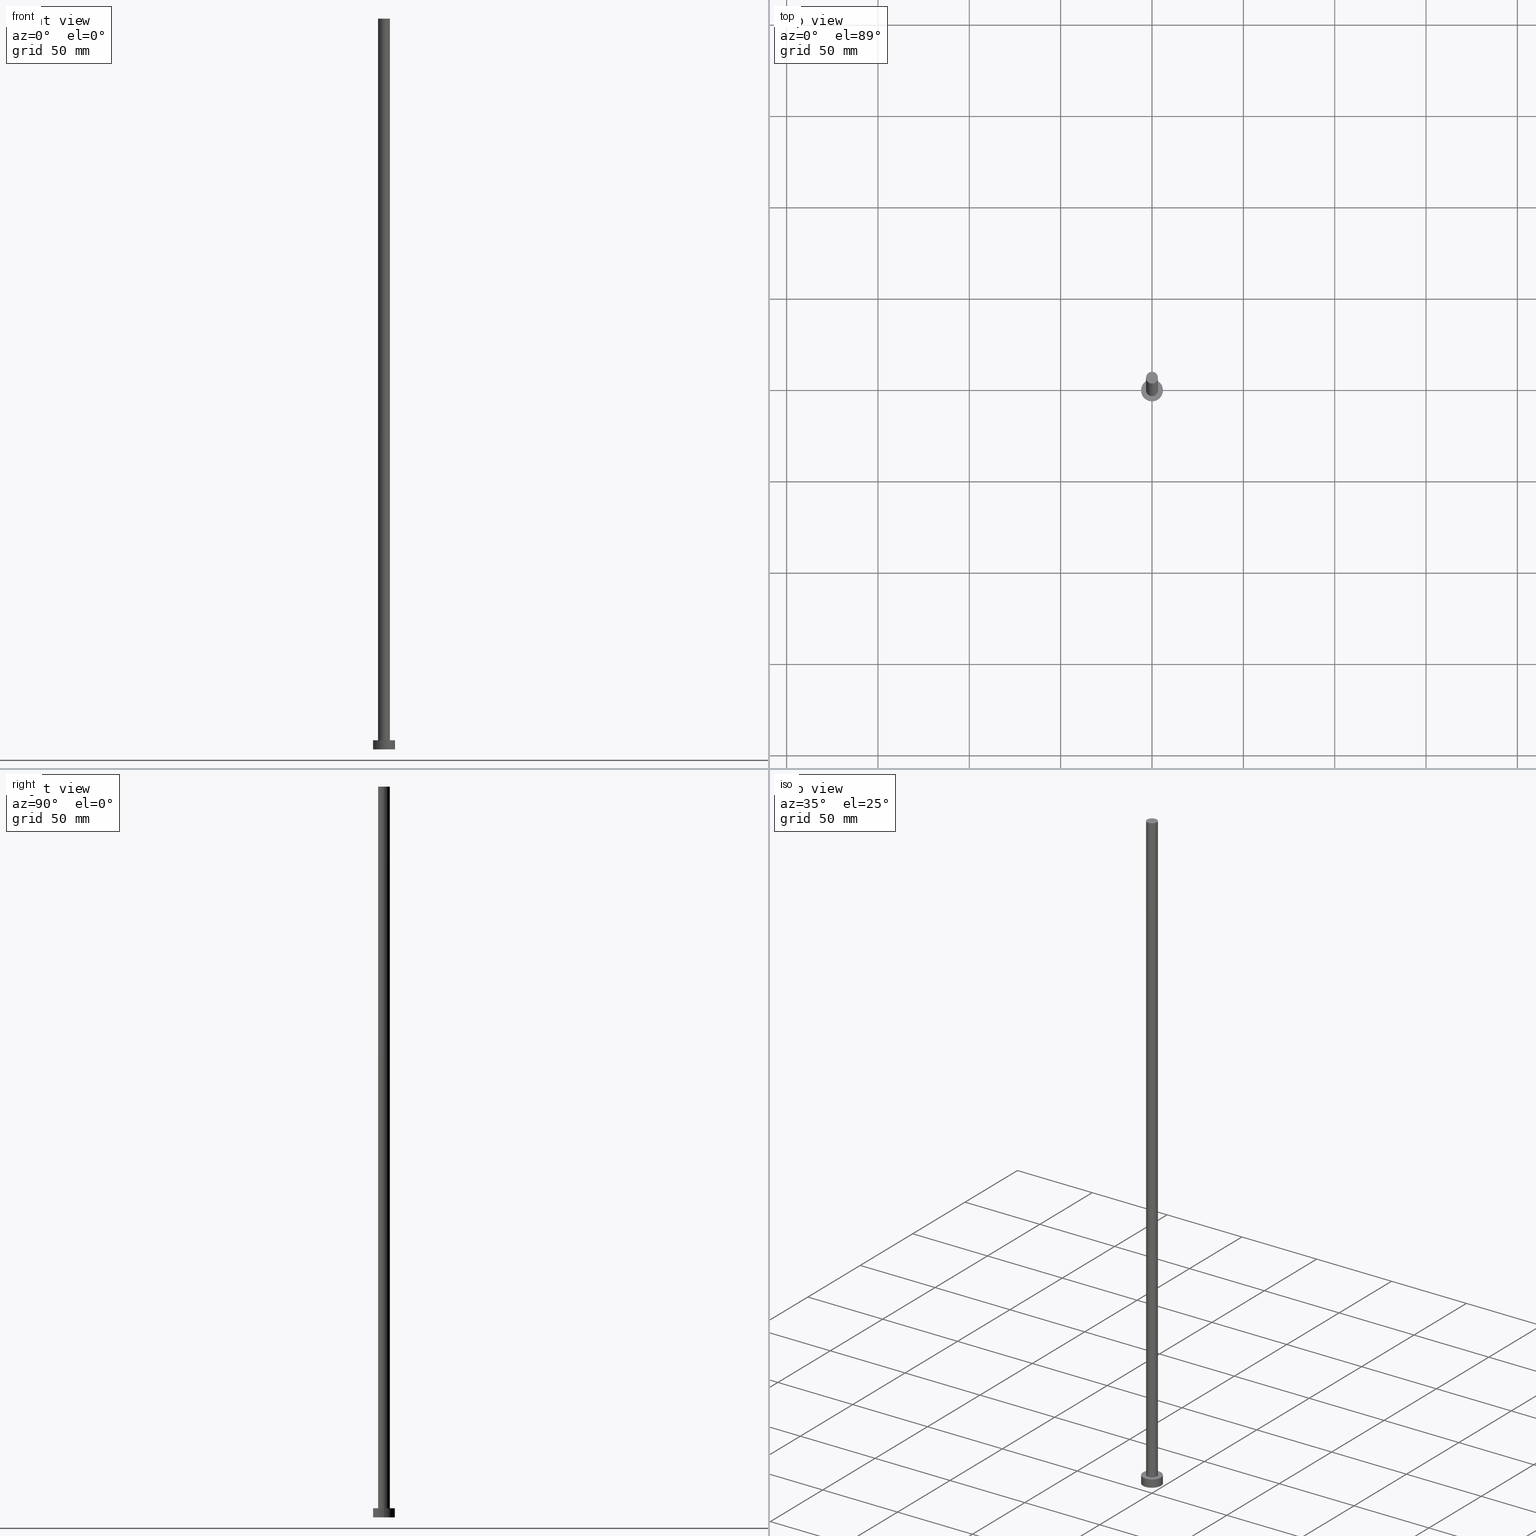
[diagram: canonical four-view strip — front | top / right | iso, engineering-drawing reading convention]
A machine part, canonical four-view strip (front | top / right | iso — engineering-drawing reading convention). The complete STEP part file that produces these views, byte-faithful:
ISO-10303-21;
HEADER;
FILE_DESCRIPTION (( 'STEP AP203' ),
    '1' );
FILE_NAME ('b815.STEP',
    '2023-02-12T11:30:34',
    ( '' ),
    ( '' ),
    'SwSTEP 2.0',
    'SolidWorks 2019',
    '' );
FILE_SCHEMA (( 'CONFIG_CONTROL_DESIGN' ));
ENDSEC;

DATA;
#1 = CARTESIAN_POINT ( 'NONE',  ( 0.000000000000000000, 0.000000000000000000, 400.0000000000000000 ) ) ;
#2 = CC_DESIGN_PERSON_AND_ORGANIZATION_ASSIGNMENT ( #74, #116, ( #146 ) ) ;
#3 = DIRECTION ( 'NONE',  ( 0.000000000000000000, 0.000000000000000000, 1.000000000000000000 ) ) ;
#4 = CARTESIAN_POINT ( 'NONE',  ( 0.000000000000000000, 0.000000000000000000, 0.000000000000000000 ) ) ;
#5 = CALENDAR_DATE ( 2023, 12, 2 ) ;
#6 = PERSON_AND_ORGANIZATION ( #99, #147 ) ;
#7 = CARTESIAN_POINT ( 'NONE',  ( 0.000000000000000000, 0.000000000000000000, 400.0000000000000000 ) ) ;
#8 = DIRECTION ( 'NONE',  ( -0.000000000000000000, -0.000000000000000000, -1.000000000000000000 ) ) ;
#9 = APPROVAL_ROLE ( '' ) ;
#10 = EDGE_CURVE ( 'NONE', #252, #248, #247, .T. ) ;
#11 = LINE ( 'NONE', #244, #232 ) ;
#12 = VERTEX_POINT ( 'NONE', #131 ) ;
#13 = ORIENTED_EDGE ( 'NONE', *, *, #17, .F. ) ;
#14 = ORIENTED_EDGE ( 'NONE', *, *, #17, .T. ) ;
#15 = AXIS2_PLACEMENT_3D ( 'NONE', #161, #101, #182 ) ;
#16 = ORIENTED_EDGE ( 'NONE', *, *, #76, .F. ) ;
#17 = EDGE_CURVE ( 'NONE', #34, #72, #171, .T. ) ;
#18 = PERSON_AND_ORGANIZATION_ROLE ( 'classification_officer' ) ;
#19 = CARTESIAN_POINT ( 'NONE',  ( 0.000000000000000000, 0.000000000000000000, 5.000000000000000000 ) ) ;
#20 = DATE_AND_TIME ( #23, #104 ) ;
#21 = APPROVAL ( #45, 'NEUR�EN�' ) ;
#22 = VECTOR ( 'NONE', #62, 1000.000000000000000 ) ;
#23 = CALENDAR_DATE ( 2023, 12, 2 ) ;
#24 = EDGE_CURVE ( 'NONE', #149, #234, #26, .T. ) ;
#25 = LINE ( 'NONE', #241, #39 ) ;
#26 = CIRCLE ( 'NONE', #58, 6.000000000000000888 ) ;
#27 = CYLINDRICAL_SURFACE ( 'NONE', #15, 3.250000000000000444 ) ;
#28 = APPROVAL_STATUS ( 'not_yet_approved' ) ;
#29 = ADVANCED_FACE ( 'NONE', ( #172, #189 ), #87, .T. ) ;
#30 = PRODUCT_DEFINITION_FORMATION_WITH_SPECIFIED_SOURCE ( 'LIBOVOLN�', '', #146, .NOT_KNOWN. ) ;
#31 = DIRECTION ( 'NONE',  ( 0.000000000000000000, 0.000000000000000000, 1.000000000000000000 ) ) ;
#32 = CC_DESIGN_PERSON_AND_ORGANIZATION_ASSIGNMENT ( #61, #102, ( #177 ) ) ;
#33 = CARTESIAN_POINT ( 'NONE',  ( 0.000000000000000000, 0.000000000000000000, 5.000000000000000000 ) ) ;
#34 = VERTEX_POINT ( 'NONE', #75 ) ;
#35 = CIRCLE ( 'NONE', #176, 3.250000000000000444 ) ;
#36 = DIRECTION ( 'NONE',  ( 0.000000000000000000, 0.000000000000000000, 1.000000000000000000 ) ) ;
#37 = CC_DESIGN_DATE_AND_TIME_ASSIGNMENT ( #238, #42, ( #160 ) ) ;
#38 = DIRECTION ( 'NONE',  ( 1.000000000000000000, 0.000000000000000000, -0.000000000000000000 ) ) ;
#39 = VECTOR ( 'NONE', #224, 1000.000000000000000 ) ;
#40 = CARTESIAN_POINT ( 'NONE',  ( 0.000000000000000000, 0.000000000000000000, 5.000000000000000000 ) ) ;
#41 = DIRECTION ( 'NONE',  ( -0.000000000000000000, -0.000000000000000000, -1.000000000000000000 ) ) ;
#42 = DATE_TIME_ROLE ( 'classification_date' ) ;
#43 = CARTESIAN_POINT ( 'NONE',  ( 0.000000000000000000, 0.000000000000000000, 0.000000000000000000 ) ) ;
#44 = DIRECTION ( 'NONE',  ( 1.000000000000000000, 0.000000000000000000, 0.000000000000000000 ) ) ;
#45 = APPROVAL_STATUS ( 'not_yet_approved' ) ;
#46 = CYLINDRICAL_SURFACE ( 'NONE', #183, 3.250000000000000444 ) ;
#47 = APPROVAL_ROLE ( '' ) ;
#48 = AXIS2_PLACEMENT_3D ( 'NONE', #153, #41, #217 ) ;
#49 = DATE_AND_TIME ( #242, #77 ) ;
#50 = DIRECTION ( 'NONE',  ( 1.000000000000000000, 0.000000000000000000, 0.000000000000000000 ) ) ;
#51 = FACE_OUTER_BOUND ( 'NONE', #70, .T. ) ;
#52 = CARTESIAN_POINT ( 'NONE',  ( -3.250000000000000444, 0.000000000000000000, 400.0000000000000000 ) ) ;
#53 = ORIENTED_EDGE ( 'NONE', *, *, #158, .T. ) ;
#54 = ORIENTED_EDGE ( 'NONE', *, *, #10, .T. ) ;
#55 = ORIENTED_EDGE ( 'NONE', *, *, #168, .T. ) ;
#56 = APPROVAL_PERSON_ORGANIZATION ( #201, #119, #9 ) ;
#57 = PLANE ( 'NONE',  #90 ) ;
#58 = AXIS2_PLACEMENT_3D ( 'NONE', #40, #208, #73 ) ;
#59 = DIRECTION ( 'NONE',  ( -1.000000000000000000, 0.000000000000000000, 0.000000000000000000 ) ) ;
#60 = APPROVAL_DATE_TIME ( #20, #21 ) ;
#61 = PERSON_AND_ORGANIZATION ( #99, #147 ) ;
#62 = DIRECTION ( 'NONE',  ( -0.000000000000000000, -0.000000000000000000, -1.000000000000000000 ) ) ;
#63 = CC_DESIGN_APPROVAL ( #21, ( #160 ) ) ;
#64 = PRODUCT_RELATED_PRODUCT_CATEGORY ( 'detail', '', ( #146 ) ) ;
#65 = CIRCLE ( 'NONE', #213, 6.000000000000000888 ) ;
#66 = APPROVAL_STATUS ( 'not_yet_approved' ) ;
#67 = CC_DESIGN_PERSON_AND_ORGANIZATION_ASSIGNMENT ( #135, #240, ( #30 ) ) ;
#68 = ADVANCED_FACE ( 'NONE', ( #84 ), #46, .T. ) ;
#69 = EDGE_LOOP ( 'NONE', ( #110, #55 ) ) ;
#70 = EDGE_LOOP ( 'NONE', ( #166, #215, #91, #151 ) ) ;
#71 = ADVANCED_FACE ( 'NONE', ( #134 ), #199, .T. ) ;
#72 = VERTEX_POINT ( 'NONE', #138 ) ;
#73 = DIRECTION ( 'NONE',  ( 1.000000000000000000, 0.000000000000000000, 0.000000000000000000 ) ) ;
#74 = PERSON_AND_ORGANIZATION ( #99, #147 ) ;
#75 = CARTESIAN_POINT ( 'NONE',  ( 3.250000000000000444, 3.980102097228897245E-16, 5.000000000000000000 ) ) ;
#76 = EDGE_CURVE ( 'NONE', #72, #34, #202, .T. ) ;
#77 = LOCAL_TIME ( 12, 30, 34.00000000000000000, #145 ) ;
#78 = APPROVAL_PERSON_ORGANIZATION ( #94, #21, #47 ) ;
#79 = CALENDAR_DATE ( 2023, 12, 2 ) ;
#80 = CARTESIAN_POINT ( 'NONE',  ( 0.000000000000000000, 0.000000000000000000, 400.0000000000000000 ) ) ;
#81 = FACE_OUTER_BOUND ( 'NONE', #251, .T. ) ;
#82 = LINE ( 'NONE', #205, #22 ) ;
#83 = DIRECTION ( 'NONE',  ( 1.000000000000000000, 0.000000000000000000, -0.000000000000000000 ) ) ;
#84 = FACE_OUTER_BOUND ( 'NONE', #210, .T. ) ;
#85 = AXIS2_PLACEMENT_3D ( 'NONE', #93, #3, #196 ) ;
#86 = ORIENTED_EDGE ( 'NONE', *, *, #10, .F. ) ;
#87 = PLANE ( 'NONE',  #108 ) ;
#88 = CARTESIAN_POINT ( 'NONE',  ( 0.000000000000000000, 0.000000000000000000, 5.000000000000000000 ) ) ;
#89 = EDGE_CURVE ( 'NONE', #169, #12, #35, .T. ) ;
#90 = AXIS2_PLACEMENT_3D ( 'NONE', #80, #255, #221 ) ;
#91 = ORIENTED_EDGE ( 'NONE', *, *, #117, .T. ) ;
#92 = EDGE_CURVE ( 'NONE', #248, #252, #65, .T. ) ;
#93 = CARTESIAN_POINT ( 'NONE',  ( 0.000000000000000000, 0.000000000000000000, 5.000000000000000000 ) ) ;
#94 = PERSON_AND_ORGANIZATION ( #99, #147 ) ;
#95 = DIRECTION ( 'NONE',  ( -0.000000000000000000, -0.000000000000000000, -1.000000000000000000 ) ) ;
#96 = PERSON_AND_ORGANIZATION_ROLE ( 'creator' ) ;
#97 = DIRECTION ( 'NONE',  ( 0.000000000000000000, 0.000000000000000000, 1.000000000000000000 ) ) ;
#98 = CARTESIAN_POINT ( 'NONE',  ( 0.000000000000000000, 0.000000000000000000, 400.0000000000000000 ) ) ;
#99 = PERSON ( 'NEUR�EN�', 'NEUR�EN�', 'NEUR�EN�', ('NEUR�EN�'), ('NEUR�EN�'), ('NEUR�EN�') ) ;
#100 = CARTESIAN_POINT ( 'NONE',  ( -6.000000000000000888, 0.000000000000000000, 5.000000000000000000 ) ) ;
#101 = DIRECTION ( 'NONE',  ( -0.000000000000000000, -0.000000000000000000, -1.000000000000000000 ) ) ;
#102 = PERSON_AND_ORGANIZATION_ROLE ( 'creator' ) ;
#103 = CARTESIAN_POINT ( 'NONE',  ( 0.000000000000000000, 0.000000000000000000, 0.000000000000000000 ) ) ;
#104 = LOCAL_TIME ( 12, 30, 34.00000000000000000, #132 ) ;
#105 = CC_DESIGN_PERSON_AND_ORGANIZATION_ASSIGNMENT ( #140, #18, ( #160 ) ) ;
#106 = DATE_AND_TIME ( #204, #137 ) ;
#107 = ADVANCED_FACE ( 'NONE', ( #81 ), #57, .T. ) ;
#108 = AXIS2_PLACEMENT_3D ( 'NONE', #33, #253, #38 ) ;
#109 = ORIENTED_EDGE ( 'NONE', *, *, #92, .T. ) ;
#110 = ORIENTED_EDGE ( 'NONE', *, *, #24, .T. ) ;
#111 = DIRECTION ( 'NONE',  ( 1.000000000000000000, 0.000000000000000000, 0.000000000000000000 ) ) ;
#112 = ORIENTED_EDGE ( 'NONE', *, *, #117, .F. ) ;
#113 = CIRCLE ( 'NONE', #193, 3.250000000000000444 ) ;
#114 = ORIENTED_EDGE ( 'NONE', *, *, #158, .F. ) ;
#115 = ADVANCED_FACE ( 'NONE', ( #136 ), #152, .T. ) ;
#116 = PERSON_AND_ORGANIZATION_ROLE ( 'design_owner' ) ;
#117 = EDGE_CURVE ( 'NONE', #169, #72, #25, .T. ) ;
#118 = CC_DESIGN_SECURITY_CLASSIFICATION ( #160, ( #30 ) ) ;
#119 = APPROVAL ( #66, 'NEUR�EN�' ) ;
#120 = APPLICATION_CONTEXT ( 'configuration controlled 3d designs of mechanical parts and assemblies' ) ;
#121 = DIRECTION ( 'NONE',  ( 0.000000000000000000, 0.000000000000000000, 1.000000000000000000 ) ) ;
#122 = COORDINATED_UNIVERSAL_TIME_OFFSET ( 1, 0, .AHEAD. ) ;
#123 = CARTESIAN_POINT ( 'NONE',  ( 6.000000000000000888, 7.347880794884120722E-16, 0.000000000000000000 ) ) ;
#124 = FACE_OUTER_BOUND ( 'NONE', #231, .T. ) ;
#125 = CARTESIAN_POINT ( 'NONE',  ( 0.000000000000000000, 0.000000000000000000, 0.000000000000000000 ) ) ;
#126 = APPROVAL ( #28, 'NEUR�EN�' ) ;
#127 = ORIENTED_EDGE ( 'NONE', *, *, #89, .T. ) ;
#128 = ORIENTED_EDGE ( 'NONE', *, *, #168, .F. ) ;
#129 =( NAMED_UNIT ( * ) SI_UNIT ( $, .STERADIAN. ) SOLID_ANGLE_UNIT ( ) );
#130 = EDGE_LOOP ( 'NONE', ( #114, #186, #164, #54 ) ) ;
#131 = CARTESIAN_POINT ( 'NONE',  ( 3.250000000000000444, 3.980102097228897245E-16, 400.0000000000000000 ) ) ;
#132 = COORDINATED_UNIVERSAL_TIME_OFFSET ( 1, 0, .AHEAD. ) ;
#133 = AXIS2_PLACEMENT_3D ( 'NONE', #88, #36, #111 ) ;
#134 = FACE_OUTER_BOUND ( 'NONE', #192, .T. ) ;
#135 = PERSON_AND_ORGANIZATION ( #99, #147 ) ;
#136 = FACE_OUTER_BOUND ( 'NONE', #130, .T. ) ;
#137 = LOCAL_TIME ( 12, 30, 34.00000000000000000, #122 ) ;
#138 = CARTESIAN_POINT ( 'NONE',  ( -3.250000000000000444, 0.000000000000000000, 5.000000000000000000 ) ) ;
#139 = CC_DESIGN_DATE_AND_TIME_ASSIGNMENT ( #106, #180, ( #177 ) ) ;
#140 = PERSON_AND_ORGANIZATION ( #99, #147 ) ;
#141 = APPROVAL_ROLE ( '' ) ;
#142 = LINE ( 'NONE', #159, #200 ) ;
#143 = DIRECTION ( 'NONE',  ( -0.000000000000000000, -0.000000000000000000, -1.000000000000000000 ) ) ;
#144 = AXIS2_PLACEMENT_3D ( 'NONE', #19, #95, #59 ) ;
#145 = COORDINATED_UNIVERSAL_TIME_OFFSET ( 1, 0, .AHEAD. ) ;
#146 = PRODUCT ( 'b815', 'b815', '', ( #156 ) ) ;
#147 = ORGANIZATION ( 'NEUR�EN�', 'NEUR�EN�', '' ) ;
#148 = DIRECTION ( 'NONE',  ( 0.000000000000000000, 0.000000000000000000, 1.000000000000000000 ) ) ;
#149 = VERTEX_POINT ( 'NONE', #100 ) ;
#150 = EDGE_CURVE ( 'NONE', #149, #252, #82, .T. ) ;
#151 = ORIENTED_EDGE ( 'NONE', *, *, #76, .T. ) ;
#152 = CYLINDRICAL_SURFACE ( 'NONE', #48, 6.000000000000000888 ) ;
#153 = CARTESIAN_POINT ( 'NONE',  ( 0.000000000000000000, 0.000000000000000000, 5.000000000000000000 ) ) ;
#154 = DIRECTION ( 'NONE',  ( 0.000000000000000000, 0.000000000000000000, 1.000000000000000000 ) ) ;
#155 = COORDINATED_UNIVERSAL_TIME_OFFSET ( 1, 0, .AHEAD. ) ;
#156 = MECHANICAL_CONTEXT ( 'NONE', #120, 'mechanical' ) ;
#157 = LOCAL_TIME ( 12, 30, 34.00000000000000000, #155 ) ;
#158 = EDGE_CURVE ( 'NONE', #234, #248, #11, .T. ) ;
#159 = CARTESIAN_POINT ( 'NONE',  ( 3.250000000000000444, 3.980102097228897245E-16, 400.0000000000000000 ) ) ;
#160 = SECURITY_CLASSIFICATION ( '', '', #236 ) ;
#161 = CARTESIAN_POINT ( 'NONE',  ( 0.000000000000000000, 0.000000000000000000, 400.0000000000000000 ) ) ;
#162 = CARTESIAN_POINT ( 'NONE',  ( 6.000000000000000888, 7.347880794884120722E-16, 5.000000000000000000 ) ) ;
#163 = AXIS2_PLACEMENT_3D ( 'NONE', #103, #121, #83 ) ;
#164 = ORIENTED_EDGE ( 'NONE', *, *, #150, .T. ) ;
#165 = CLOSED_SHELL ( 'NONE', ( #68, #71, #115, #29, #226, #219, #107 ) ) ;
#166 = ORIENTED_EDGE ( 'NONE', *, *, #211, .F. ) ;
#167 = ORIENTED_EDGE ( 'NONE', *, *, #150, .F. ) ;
#168 = EDGE_CURVE ( 'NONE', #234, #149, #173, .T. ) ;
#169 = VERTEX_POINT ( 'NONE', #52 ) ;
#170 = MANIFOLD_SOLID_BREP ( 'P�idat vysunut�m3', #165 ) ;
#171 = CIRCLE ( 'NONE', #133, 3.250000000000000444 ) ;
#172 = FACE_BOUND ( 'NONE', #228, .T. ) ;
#173 = CIRCLE ( 'NONE', #184, 6.000000000000000888 ) ;
#174 = EDGE_CURVE ( 'NONE', #12, #169, #113, .T. ) ;
#175 = DIRECTION ( 'NONE',  ( -0.000000000000000000, -0.000000000000000000, -1.000000000000000000 ) ) ;
#176 = AXIS2_PLACEMENT_3D ( 'NONE', #98, #97, #178 ) ;
#177 = PRODUCT_DEFINITION ( 'NEZN�M�', '', #30, #191 ) ;
#178 = DIRECTION ( 'NONE',  ( 1.000000000000000000, 0.000000000000000000, 0.000000000000000000 ) ) ;
#179 = SHAPE_DEFINITION_REPRESENTATION ( #188, #207 ) ;
#180 = DATE_TIME_ROLE ( 'creation_date' ) ;
#181 = APPLICATION_PROTOCOL_DEFINITION ( 'international standard', 'config_control_design', 1994, #254 ) ;
#182 = DIRECTION ( 'NONE',  ( -1.000000000000000000, 0.000000000000000000, 0.000000000000000000 ) ) ;
#183 = AXIS2_PLACEMENT_3D ( 'NONE', #1, #175, #237 ) ;
#184 = AXIS2_PLACEMENT_3D ( 'NONE', #227, #31, #50 ) ;
#185 = UNCERTAINTY_MEASURE_WITH_UNIT (LENGTH_MEASURE( 1.000000000000000082E-05 ), #206, 'distance_accuracy_value', 'NONE');
#186 = ORIENTED_EDGE ( 'NONE', *, *, #24, .F. ) ;
#187 = AXIS2_PLACEMENT_3D ( 'NONE', #125, #148, #230 ) ;
#188 = PRODUCT_DEFINITION_SHAPE ( 'NONE', 'NONE',  #177 ) ;
#189 = FACE_OUTER_BOUND ( 'NONE', #69, .T. ) ;
#190 = ORIENTED_EDGE ( 'NONE', *, *, #211, .T. ) ;
#191 = DESIGN_CONTEXT ( 'detailed design', #254, 'design' ) ;
#192 = EDGE_LOOP ( 'NONE', ( #128, #53, #109, #167 ) ) ;
#193 = AXIS2_PLACEMENT_3D ( 'NONE', #7, #225, #223 ) ;
#194 = DATE_AND_TIME ( #79, #229 ) ;
#195 = COORDINATED_UNIVERSAL_TIME_OFFSET ( 1, 0, .AHEAD. ) ;
#196 = DIRECTION ( 'NONE',  ( 1.000000000000000000, 0.000000000000000000, 0.000000000000000000 ) ) ;
#197 = APPROVAL_DATE_TIME ( #194, #126 ) ;
#198 = APPLICATION_PROTOCOL_DEFINITION ( 'international standard', 'config_control_design', 1994, #120 ) ;
#199 = CYLINDRICAL_SURFACE ( 'NONE', #144, 6.000000000000000888 ) ;
#200 = VECTOR ( 'NONE', #143, 1000.000000000000000 ) ;
#201 = PERSON_AND_ORGANIZATION ( #99, #147 ) ;
#202 = CIRCLE ( 'NONE', #85, 3.250000000000000444 ) ;
#203 = APPROVAL_DATE_TIME ( #49, #119 ) ;
#204 = CALENDAR_DATE ( 2023, 12, 2 ) ;
#205 = CARTESIAN_POINT ( 'NONE',  ( -6.000000000000000888, 0.000000000000000000, 5.000000000000000000 ) ) ;
#206 =( LENGTH_UNIT ( ) NAMED_UNIT ( * ) SI_UNIT ( .MILLI., .METRE. ) );
#207 = ADVANCED_BREP_SHAPE_REPRESENTATION ( 'b815', ( #170, #218 ), #233 ) ;
#208 = DIRECTION ( 'NONE',  ( 0.000000000000000000, 0.000000000000000000, 1.000000000000000000 ) ) ;
#209 = CC_DESIGN_APPROVAL ( #126, ( #30 ) ) ;
#210 = EDGE_LOOP ( 'NONE', ( #212, #190, #14, #112 ) ) ;
#211 = EDGE_CURVE ( 'NONE', #12, #34, #142, .T. ) ;
#212 = ORIENTED_EDGE ( 'NONE', *, *, #174, .F. ) ;
#213 = AXIS2_PLACEMENT_3D ( 'NONE', #4, #220, #44 ) ;
#214 = ORIENTED_EDGE ( 'NONE', *, *, #174, .T. ) ;
#215 = ORIENTED_EDGE ( 'NONE', *, *, #89, .F. ) ;
#216 = CC_DESIGN_PERSON_AND_ORGANIZATION_ASSIGNMENT ( #235, #96, ( #30 ) ) ;
#217 = DIRECTION ( 'NONE',  ( -1.000000000000000000, 0.000000000000000000, 0.000000000000000000 ) ) ;
#218 = AXIS2_PLACEMENT_3D ( 'NONE', #43, #154, #239 ) ;
#219 = ADVANCED_FACE ( 'NONE', ( #51 ), #27, .T. ) ;
#220 = DIRECTION ( 'NONE',  ( 0.000000000000000000, 0.000000000000000000, 1.000000000000000000 ) ) ;
#221 = DIRECTION ( 'NONE',  ( 1.000000000000000000, 0.000000000000000000, -0.000000000000000000 ) ) ;
#222 = APPROVAL_PERSON_ORGANIZATION ( #6, #126, #141 ) ;
#223 = DIRECTION ( 'NONE',  ( 1.000000000000000000, 0.000000000000000000, 0.000000000000000000 ) ) ;
#224 = DIRECTION ( 'NONE',  ( -0.000000000000000000, -0.000000000000000000, -1.000000000000000000 ) ) ;
#225 = DIRECTION ( 'NONE',  ( 0.000000000000000000, 0.000000000000000000, 1.000000000000000000 ) ) ;
#226 = ADVANCED_FACE ( 'NONE', ( #124 ), #243, .F. ) ;
#227 = CARTESIAN_POINT ( 'NONE',  ( 0.000000000000000000, 0.000000000000000000, 5.000000000000000000 ) ) ;
#228 = EDGE_LOOP ( 'NONE', ( #16, #13 ) ) ;
#229 = LOCAL_TIME ( 12, 30, 34.00000000000000000, #195 ) ;
#230 = DIRECTION ( 'NONE',  ( 1.000000000000000000, 0.000000000000000000, 0.000000000000000000 ) ) ;
#231 = EDGE_LOOP ( 'NONE', ( #86, #249 ) ) ;
#232 = VECTOR ( 'NONE', #8, 1000.000000000000000 ) ;
#233 =( GEOMETRIC_REPRESENTATION_CONTEXT ( 3 ) GLOBAL_UNCERTAINTY_ASSIGNED_CONTEXT ( ( #185 ) ) GLOBAL_UNIT_ASSIGNED_CONTEXT ( ( #206, #246, #129 ) ) REPRESENTATION_CONTEXT ( 'NONE', 'WORKASPACE' ) );
#234 = VERTEX_POINT ( 'NONE', #162 ) ;
#235 = PERSON_AND_ORGANIZATION ( #99, #147 ) ;
#236 = SECURITY_CLASSIFICATION_LEVEL ( 'unclassified' ) ;
#237 = DIRECTION ( 'NONE',  ( -1.000000000000000000, 0.000000000000000000, 0.000000000000000000 ) ) ;
#238 = DATE_AND_TIME ( #5, #157 ) ;
#239 = DIRECTION ( 'NONE',  ( 1.000000000000000000, 0.000000000000000000, 0.000000000000000000 ) ) ;
#240 = PERSON_AND_ORGANIZATION_ROLE ( 'design_supplier' ) ;
#241 = CARTESIAN_POINT ( 'NONE',  ( -3.250000000000000444, 0.000000000000000000, 400.0000000000000000 ) ) ;
#242 = CALENDAR_DATE ( 2023, 12, 2 ) ;
#243 = PLANE ( 'NONE',  #163 ) ;
#244 = CARTESIAN_POINT ( 'NONE',  ( 6.000000000000000888, 7.347880794884120722E-16, 5.000000000000000000 ) ) ;
#245 = CARTESIAN_POINT ( 'NONE',  ( -6.000000000000000888, 0.000000000000000000, 0.000000000000000000 ) ) ;
#246 =( NAMED_UNIT ( * ) PLANE_ANGLE_UNIT ( ) SI_UNIT ( $, .RADIAN. ) );
#247 = CIRCLE ( 'NONE', #187, 6.000000000000000888 ) ;
#248 = VERTEX_POINT ( 'NONE', #123 ) ;
#249 = ORIENTED_EDGE ( 'NONE', *, *, #92, .F. ) ;
#250 = CC_DESIGN_APPROVAL ( #119, ( #177 ) ) ;
#251 = EDGE_LOOP ( 'NONE', ( #127, #214 ) ) ;
#252 = VERTEX_POINT ( 'NONE', #245 ) ;
#253 = DIRECTION ( 'NONE',  ( 0.000000000000000000, 0.000000000000000000, 1.000000000000000000 ) ) ;
#254 = APPLICATION_CONTEXT ( 'configuration controlled 3d designs of mechanical parts and assemblies' ) ;
#255 = DIRECTION ( 'NONE',  ( 0.000000000000000000, 0.000000000000000000, 1.000000000000000000 ) ) ;
ENDSEC;
END-ISO-10303-21;
